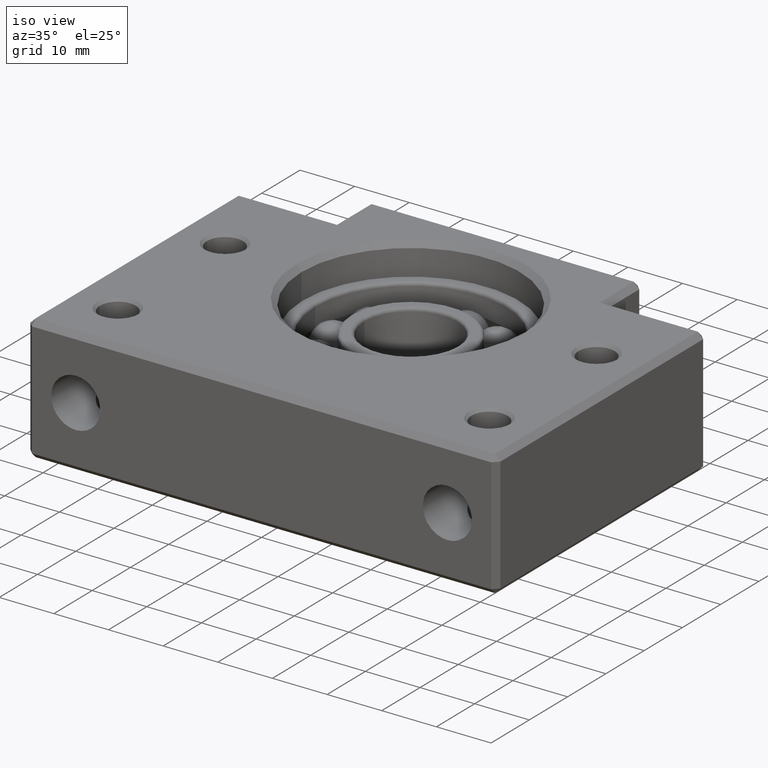
[diagram: clean part render]
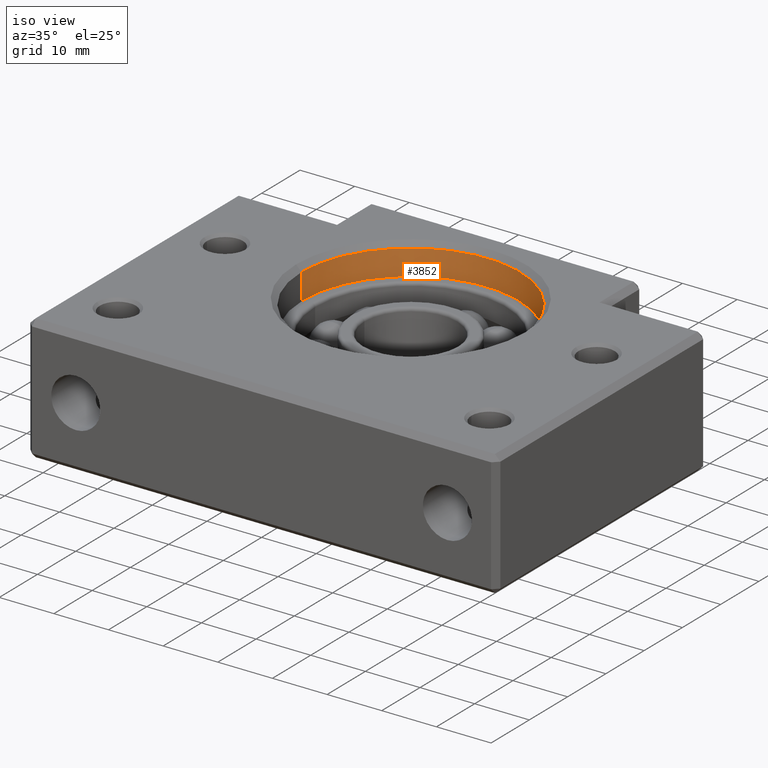
[diagram: same view with one face highlighted and labeled with its STEP entity id]
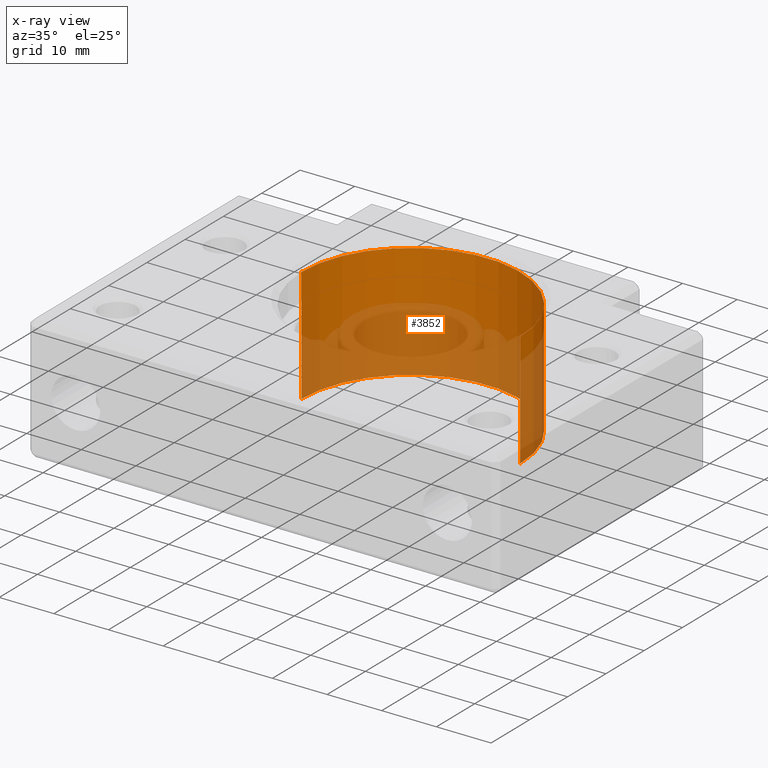
[diagram: x-ray of the same camera — body ghosted, the highlighted face saturated]
A machine part, iso view. The second image highlights one B-rep face of the part: STEP entity #3852.
The next image is the same camera in x-ray: the body ghosted, the highlighted face saturated — about 52% of this face is hidden behind the body in this view.
In plain terms, the highlighted cylindrical surface (partial cylindrical patch) has radius 20 mm, axis along (-0, -0, -1).
Its self-contained STEP definition (entity closure, byte-faithful):
#157 = EDGE_CURVE ( 'NONE', #4612, #3928, #774, .T. ) ;
#216 = EDGE_CURVE ( 'NONE', #4610, #3929, #918, .T. ) ;
#771 = DIRECTION ( 'NONE',  ( -0.0000000000000000000, -0.0000000000000000000, -1.000000000000000000 ) ) ;
#772 = VECTOR ( 'NONE', #771, 1000.000000000000000 ) ;
#773 = CARTESIAN_POINT ( 'NONE',  ( 20.00000000000002100, 39.00000000000000700, 11.50000000000000000 ) ) ;
#774 = LINE ( 'NONE', #773, #772 ) ;
#915 = DIRECTION ( 'NONE',  ( -0.0000000000000000000, -0.0000000000000000000, -1.000000000000000000 ) ) ;
#916 = VECTOR ( 'NONE', #915, 1000.000000000000000 ) ;
#917 = CARTESIAN_POINT ( 'NONE',  ( -19.99999999999999300, 39.00000000000000700, 11.50000000000000000 ) ) ;
#918 = LINE ( 'NONE', #917, #916 ) ;
#1787 = DIRECTION ( 'NONE',  ( 1.000000000000000000, 0.0000000000000000000, 0.0000000000000000000 ) ) ;
#1788 = DIRECTION ( 'NONE',  ( -0.0000000000000000000, -0.0000000000000000000, -1.000000000000000000 ) ) ;
#1789 = CARTESIAN_POINT ( 'NONE',  ( 1.234791104884921900E-014, 39.00000000000000700, -10.50000000000000200 ) ) ;
#1790 = AXIS2_PLACEMENT_3D ( 'NONE', #1789, #1788, #1787 ) ;
#1791 = CIRCLE ( 'NONE', #1790, 20.00000000000000700 ) ;
#1807 = DIRECTION ( 'NONE',  ( 1.000000000000000000, 0.0000000000000000000, 0.0000000000000000000 ) ) ;
#1808 = DIRECTION ( 'NONE',  ( 0.0000000000000000000, 0.0000000000000000000, 1.000000000000000000 ) ) ;
#1809 = CARTESIAN_POINT ( 'NONE',  ( 1.234791104884921900E-014, 39.00000000000000700, 10.50000000000000200 ) ) ;
#1810 = AXIS2_PLACEMENT_3D ( 'NONE', #1809, #1808, #1807 ) ;
#1811 = DIRECTION ( 'NONE',  ( -1.000000000000000000, 0.0000000000000000000, 0.0000000000000000000 ) ) ;
#1812 = DIRECTION ( 'NONE',  ( -0.0000000000000000000, -0.0000000000000000000, -1.000000000000000000 ) ) ;
#1813 = CARTESIAN_POINT ( 'NONE',  ( 1.234791104884921900E-014, 39.00000000000000700, 11.50000000000000000 ) ) ;
#1814 = AXIS2_PLACEMENT_3D ( 'NONE', #1813, #1812, #1811 ) ;
#1815 = CIRCLE ( 'NONE', #1810, 20.00000000000000700 ) ;
#1816 = CYLINDRICAL_SURFACE ( 'NONE', #1814, 20.00000000000000700 ) ;
#1817 = FACE_OUTER_BOUND ( 'NONE', #3853, .T. ) ;
#1974 = CARTESIAN_POINT ( 'NONE',  ( -19.99999999999999300, 39.00000000000000700, -10.50000000000000200 ) ) ;
#1975 = CARTESIAN_POINT ( 'NONE',  ( 20.00000000000002100, 39.00000000000000700, -10.50000000000000200 ) ) ;
#3177 = CARTESIAN_POINT ( 'NONE',  ( 20.00000000000002100, 39.00000000000000700, 10.50000000000000200 ) ) ;
#3178 = CARTESIAN_POINT ( 'NONE',  ( -19.99999999999999300, 39.00000000000000700, 10.50000000000000200 ) ) ;
#3802 = ORIENTED_EDGE ( 'NONE', *, *, #216, .T. ) ;
#3833 = ORIENTED_EDGE ( 'NONE', *, *, #3835, .T. ) ;
#3835 = EDGE_CURVE ( 'NONE', #3929, #3928, #1791, .T. ) ;
#3852 = ADVANCED_FACE ( 'NONE', ( #1817 ), #1816, .F. ) ;
#3853 = EDGE_LOOP ( 'NONE', ( #3854, #3856, #3802, #3833 ) ) ;
#3854 = ORIENTED_EDGE ( 'NONE', *, *, #157, .F. ) ;
#3855 = EDGE_CURVE ( 'NONE', #4612, #4610, #1815, .T. ) ;
#3856 = ORIENTED_EDGE ( 'NONE', *, *, #3855, .T. ) ;
#3928 = VERTEX_POINT ( 'NONE', #1975 ) ;
#3929 = VERTEX_POINT ( 'NONE', #1974 ) ;
#4610 = VERTEX_POINT ( 'NONE', #3178 ) ;
#4612 = VERTEX_POINT ( 'NONE', #3177 ) ;